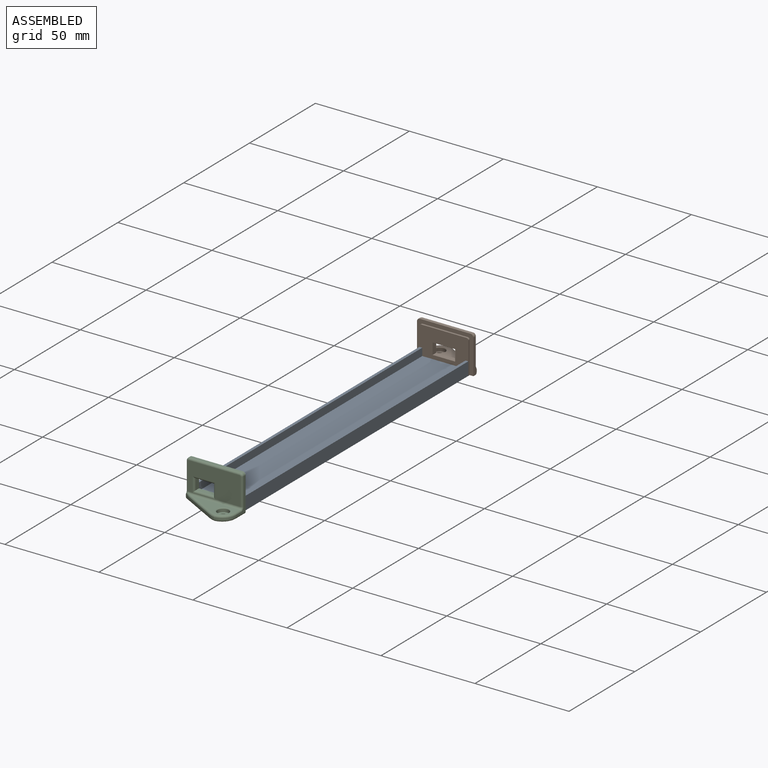
[diagram: assembled view]
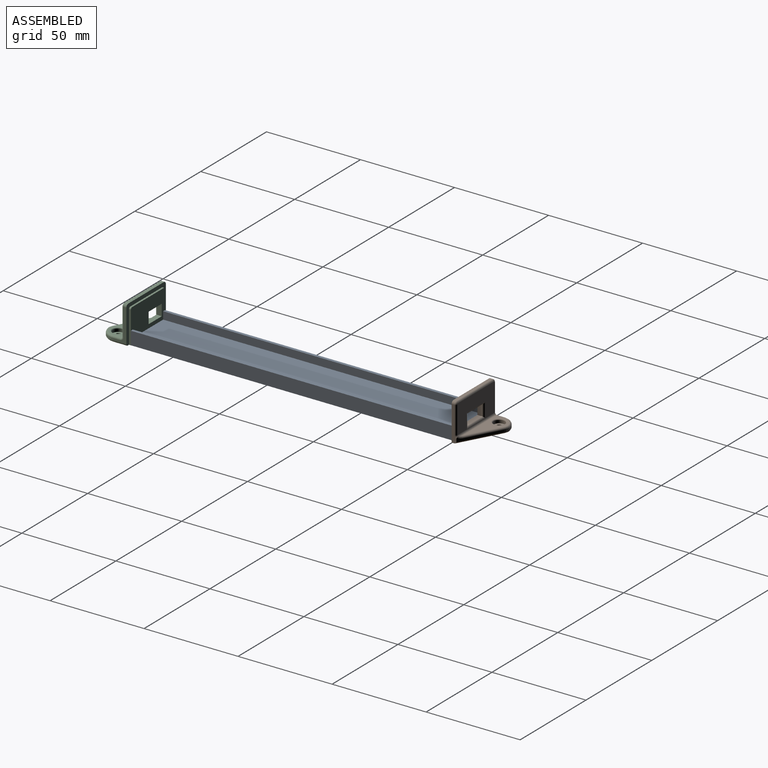
[diagram: assembled view, second angle]
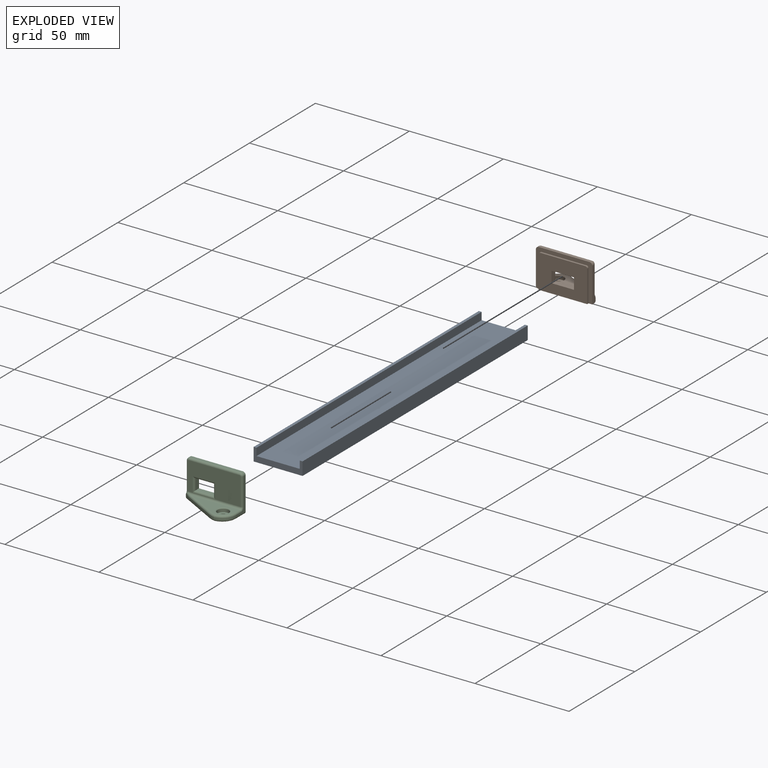
[diagram: exploded view]
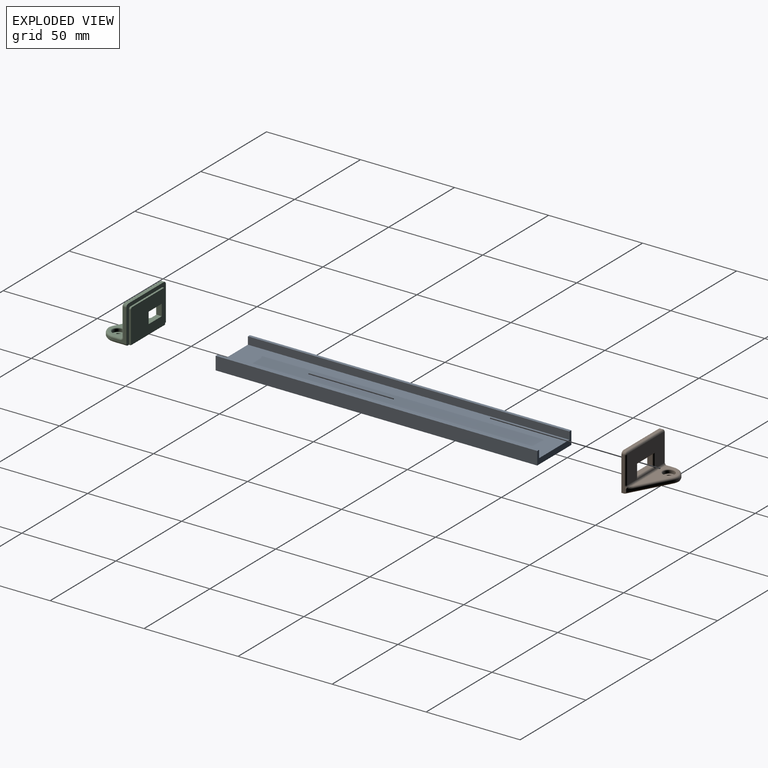
[diagram: exploded view, second angle]
ASSEMBLY  parts=3 mates=2
PART A: 10 faces, bbox 171x26x7 mm
  f0: plane 26x7mm, normal (-1,0,0), area 90mm2, adj f1,f3,f4,f5,f6,f7,f8,f9
  f1: plane 171x7mm, normal (0,-1,0), area 1197mm2, adj f0,f2,f5,f9
  f2: plane 26x7mm, normal (1,0,0), area 90mm2, adj f1,f3,f4,f5,f6,f7,f8,f9
  f3: plane 171x7mm, normal (0,1,0), area 1197mm2, adj f0,f2,f5,f7
  f4: plane 171x23mm, normal (0,0,1), area 3933mm2, adj f0,f2,f6,f8
  f5: plane 171x26mm, normal (0,0,-1), area 4446mm2, adj f0,f1,f2,f3
  f6: plane 171x4mm, normal (0,-1,0), area 684mm2, adj f0,f2,f4,f7
  f7: plane 171x1.5mm, normal (0,0,1), area 256.5mm2, adj f0,f2,f3,f6
  f8: plane 171x4mm, normal (0,1,0), area 684mm2, adj f0,f2,f4,f9
  f9: plane 171x1.5mm, normal (0,0,1), area 256.5mm2, adj f0,f1,f2,f8
PART B: 47 faces, bbox 31.4x20.3x16.4 mm
  f0: plane 26x18mm, normal (0,0,-1), area 395.6mm2, adj f5,f17,f18,f19,f20,f21,f22,f23
  f1: plane 28x15mm, normal (0,0,1), area 307.9mm2, adj f14,f27,f28,f29,f33,f35,f37,f39
  f2: plane 30x20mm, normal (0,0,-1), area 131.2mm2, adj f4,f5,f6,f7,f12,f13,f21,f22
  f3: cylinder r=1.6mm len=3.2mm, axis (0,-1,0), area 10.1mm2, adj f5,f15
  f4: plane 18.73x2.73mm, normal (-1,0,0), area 30.3mm2, adj f2,f5,f8,f13,f41,f42,f45
  f5: plane 29x14.46mm, normal (0,-1,0), area 265.1mm2, adj f0,f2,f3,f4,f21,f23,f43,f44
  f6: plane 17.5x7mm, normal (1,0,0), area 32.6mm2, adj f2,f11,f12,f31,f32,f33,f43
  f7: plane 27x1.5mm, normal (0,1,0), area 40.5mm2, adj f2,f12,f13,f37
  f8: plane 20.61x11.37mm, normal (-0.48,0,0.88), area 24.4mm2, adj f4,f10,f38,f40,f42,f45
  f9: plane 25.08x9.96mm, normal (0,1,0), area 111.4mm2, adj f14,f26,f32,f34,f36,f38
  f10: cylinder r=7.5mm len=2.89mm, axis (0,-1,0), area 3mm2, adj f8,f11,f36,f46
  f11: cylinder r=7.5mm len=7.47mm, axis (0,1,0), area 11.1mm2, adj f6,f10,f34,f44
  f12: cylinder r=1.5mm len=1.5mm, axis (0,0,1), area 3.5mm2, adj f2,f6,f7,f35
  f13: cylinder r=1.5mm len=1.5mm, axis (0,0,-1), area 3.5mm2, adj f2,f4,f7,f39
  f14: cylinder r=1mm len=28mm, axis (1,0,0), area 42.6mm2, adj f1,f9,f30,f31,f40,f42
  f15: plane 6x6mm, normal (0,1,0), area 20.2mm2, adj f3,f16
  f16: cylinder r=3mm len=6mm, axis (0,1,0), area 28.3mm2, adj f15,f26
  f17: plane 12x2.5mm, normal (0,-1,0), area 30mm2, adj f0,f18,f20,f27
  f18: plane 6x2.5mm, normal (1,0,0), area 15mm2, adj f0,f17,f19,f28
  f19: plane 12x2.5mm, normal (0,1,0), area 30mm2, adj f0,f18,f20,f30
  f20: plane 6x2.5mm, normal (-1,0,0), area 15mm2, adj f0,f17,f19,f29
  f21: plane 17x1mm, normal (1,0,0), area 17mm2, adj f0,f2,f5,f25
  f22: plane 24x1mm, normal (0,1,0), area 24mm2, adj f0,f2,f24,f25
  f23: plane 17x1mm, normal (-1,0,0), area 17mm2, adj f0,f2,f5,f24
  f24: cylinder r=1mm len=1mm, axis (0,0,1), area 1.6mm2, adj f0,f2,f22,f23
  f25: cylinder r=1mm len=1mm, axis (0,0,-1), area 1.6mm2, adj f0,f2,f21,f22
  f26: torus R=3.5mm, axis (0,-1,0), area 15.7mm2, adj f9,f16
  f27: cylinder r=1mm len=14mm, axis (1,0,0), area 20.4mm2, adj f1,f17,f28,f29
  f28: cylinder r=1mm len=8mm, axis (0,1,0), area 11mm2, adj f1,f18,f27,f30
  f29: cylinder r=1mm len=8mm, axis (0,-1,0), area 11mm2, adj f1,f20,f27,f30
  f30: cylinder r=1mm len=14mm, axis (-1,0,0), area 20.4mm2, adj f14,f19,f28,f29
  f31: torus R=2mm, axis (-1,0,0), area 3.4mm2, adj f6,f14,f32,f33
  f32: cylinder r=1mm len=3.5mm, axis (0,0,1), area 5.5mm2, adj f6,f9,f31,f34
  f33: cylinder r=1mm len=14.5mm, axis (0,-1,0), area 22.8mm2, adj f1,f6,f31,f35
  f34: torus R=6.5mm, axis (0,-1,0), area 16.5mm2, adj f9,f11,f32,f36
  f35: torus R=0.5mm, axis (0,0,1), area 2.8mm2, adj f1,f12,f33,f37
  f36: torus R=6.5mm, axis (0,-1,0), area 4.5mm2, adj f9,f10,f34,f38
  f37: cylinder r=1mm len=27mm, axis (1,0,0), area 42.4mm2, adj f1,f7,f35,f39
  f38: cylinder r=1mm len=17.36mm, axis (0.88,0,0.48), area 30.2mm2, adj f8,f9,f36,f40
  f39: torus R=0.5mm, axis (0,0,1), area 2.8mm2, adj f1,f13,f37,f41
  f40: bspline ~5.06x2.5mm, area 3.9mm2, adj f8,f14,f38,f42
  f41: cylinder r=1mm len=14.5mm, axis (0,1,0), area 22.8mm2, adj f1,f4,f39,f42
  f42: torus R=2mm, axis (-1,0,0), area 1.9mm2, adj f4,f8,f14,f40,f41
  f43: cylinder r=1mm len=7mm, axis (0,0,-1), area 11mm2, adj f2,f5,f6,f44
  f44: torus R=6.5mm, axis (0,1,0), area 16.5mm2, adj f5,f11,f43,f46
  f45: cylinder r=1mm len=21.28mm, axis (0.88,0,0.48), area 36.8mm2, adj f4,f5,f8,f46
  f46: torus R=6.5mm, axis (0,1,0), area 4.5mm2, adj f5,f10,f44,f45
PART C: 47 faces, bbox 31.4x20.3x16.4 mm
  f0: plane 26x18mm, normal (0,0,-1), area 407.6mm2, adj f5,f17,f18,f19,f20,f21,f22,f23
  f1: plane 28x15mm, normal (0,0,1), area 323.9mm2, adj f14,f27,f28,f29,f33,f35,f37,f39
  f2: plane 30x20mm, normal (0,0,-1), area 131.2mm2, adj f4,f5,f6,f7,f12,f13,f21,f22
  f3: cylinder r=1.6mm len=3.2mm, axis (0,-1,0), area 10.1mm2, adj f5,f15
  f4: plane 18.73x2.73mm, normal (-1,0,0), area 30.3mm2, adj f2,f5,f8,f13,f41,f42,f45
  f5: plane 29x14.46mm, normal (0,-1,0), area 265.1mm2, adj f0,f2,f3,f4,f21,f23,f43,f44
  f6: plane 17.5x7mm, normal (1,0,0), area 32.6mm2, adj f2,f11,f12,f31,f32,f33,f43
  f7: plane 27x1.5mm, normal (0,1,0), area 40.5mm2, adj f2,f12,f13,f37
  f8: plane 20.61x11.37mm, normal (-0.48,0,0.88), area 24.4mm2, adj f4,f10,f38,f40,f42,f45
  f9: plane 25.08x9.96mm, normal (0,1,0), area 111.4mm2, adj f14,f26,f32,f34,f36,f38
  f10: cylinder r=7.5mm len=2.89mm, axis (0,-1,0), area 3mm2, adj f8,f11,f36,f46
  f11: cylinder r=7.5mm len=7.47mm, axis (0,1,0), area 11.1mm2, adj f6,f10,f34,f44
  f12: cylinder r=1.5mm len=1.5mm, axis (0,0,1), area 3.5mm2, adj f2,f6,f7,f35
  f13: cylinder r=1.5mm len=1.5mm, axis (0,0,-1), area 3.5mm2, adj f2,f4,f7,f39
  f14: cylinder r=1mm len=28mm, axis (1,0,0), area 42.6mm2, adj f1,f9,f30,f31,f40,f42
  f15: plane 6x6mm, normal (0,1,0), area 20.2mm2, adj f3,f16
  f16: cylinder r=3mm len=6mm, axis (0,1,0), area 28.3mm2, adj f15,f26
  f17: plane 10x2.5mm, normal (0,-1,0), area 25mm2, adj f0,f18,f20,f27
  f18: plane 6x2.5mm, normal (1,0,0), area 15mm2, adj f0,f17,f19,f28
  f19: plane 10x2.5mm, normal (0,1,0), area 25mm2, adj f0,f18,f20,f30
  f20: plane 6x2.5mm, normal (-1,0,0), area 15mm2, adj f0,f17,f19,f29
  f21: plane 17x1mm, normal (1,0,0), area 17mm2, adj f0,f2,f5,f25
  f22: plane 24x1mm, normal (0,1,0), area 24mm2, adj f0,f2,f24,f25
  f23: plane 17x1mm, normal (-1,0,0), area 17mm2, adj f0,f2,f5,f24
  f24: cylinder r=1mm len=1mm, axis (0,0,1), area 1.6mm2, adj f0,f2,f22,f23
  f25: cylinder r=1mm len=1mm, axis (0,0,-1), area 1.6mm2, adj f0,f2,f21,f22
  f26: torus R=3.5mm, axis (0,-1,0), area 15.7mm2, adj f9,f16
  f27: cylinder r=1mm len=12mm, axis (1,0,0), area 17.3mm2, adj f1,f17,f28,f29
  f28: cylinder r=1mm len=8mm, axis (0,1,0), area 11mm2, adj f1,f18,f27,f30
  f29: cylinder r=1mm len=8mm, axis (0,-1,0), area 11mm2, adj f1,f20,f27,f30
  f30: cylinder r=1mm len=12mm, axis (-1,0,0), area 17.3mm2, adj f14,f19,f28,f29
  f31: torus R=2mm, axis (-1,0,0), area 3.4mm2, adj f6,f14,f32,f33
  f32: cylinder r=1mm len=3.5mm, axis (0,0,1), area 5.5mm2, adj f6,f9,f31,f34
  f33: cylinder r=1mm len=14.5mm, axis (0,-1,0), area 22.8mm2, adj f1,f6,f31,f35
  f34: torus R=6.5mm, axis (0,-1,0), area 16.5mm2, adj f9,f11,f32,f36
  f35: torus R=0.5mm, axis (0,0,1), area 2.8mm2, adj f1,f12,f33,f37
  f36: torus R=6.5mm, axis (0,-1,0), area 4.5mm2, adj f9,f10,f34,f38
  f37: cylinder r=1mm len=27mm, axis (1,0,0), area 42.4mm2, adj f1,f7,f35,f39
  f38: cylinder r=1mm len=17.36mm, axis (0.88,0,0.48), area 30.2mm2, adj f8,f9,f36,f40
  f39: torus R=0.5mm, axis (0,0,1), area 2.8mm2, adj f1,f13,f37,f41
  f40: bspline ~5.06x2.5mm, area 3.9mm2, adj f8,f14,f38,f42
  f41: cylinder r=1mm len=14.5mm, axis (0,1,0), area 22.8mm2, adj f1,f4,f39,f42
  f42: torus R=2mm, axis (-1,0,0), area 1.9mm2, adj f4,f8,f14,f40,f41
  f43: cylinder r=1mm len=7mm, axis (0,0,-1), area 11mm2, adj f2,f5,f6,f44
  f44: torus R=6.5mm, axis (0,1,0), area 16.5mm2, adj f5,f11,f43,f46
  f45: cylinder r=1mm len=21.28mm, axis (0.88,0,0.48), area 36.8mm2, adj f4,f5,f8,f46
  f46: torus R=6.5mm, axis (0,1,0), area 4.5mm2, adj f5,f10,f44,f45
PLACE A rot(axis=(0,0,-1),90deg) t=(-56.43,102.64,-35.42)mm
PLACE B rot(axis=(0,0.71,0.71),180deg) t=(-28.43,103.64,-35.42)mm
PLACE C rot(axis=(1,0,0),90deg) t=(-58.43,-69.36,-35.42)mm
MATE fastened A.f2 <-> C.f0  axis (0,-1,0) through (-43.43,-68.36,-35.42)mm
MATE fastened A.f0 <-> B.f0  axis (0,1,0) through (-43.43,102.64,-35.42)mm
